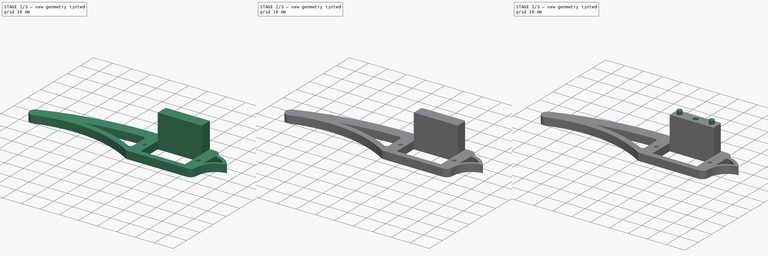
[diagram: build sequence overview — one tinted view per stage of 3, left to right]
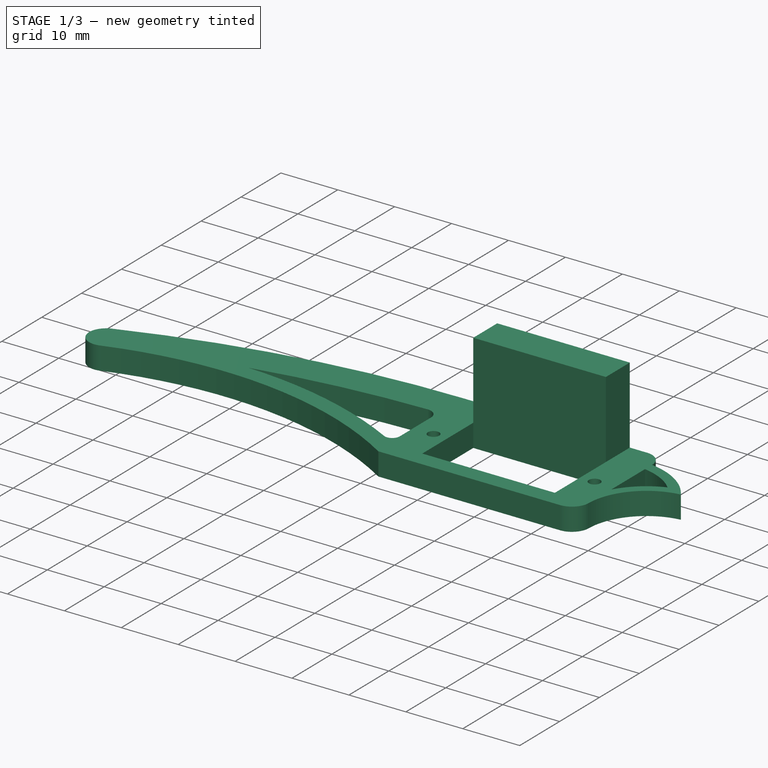
[diagram: stage 1 of 3 — iso view after this stage's code; geometry added in this stage tinted green]
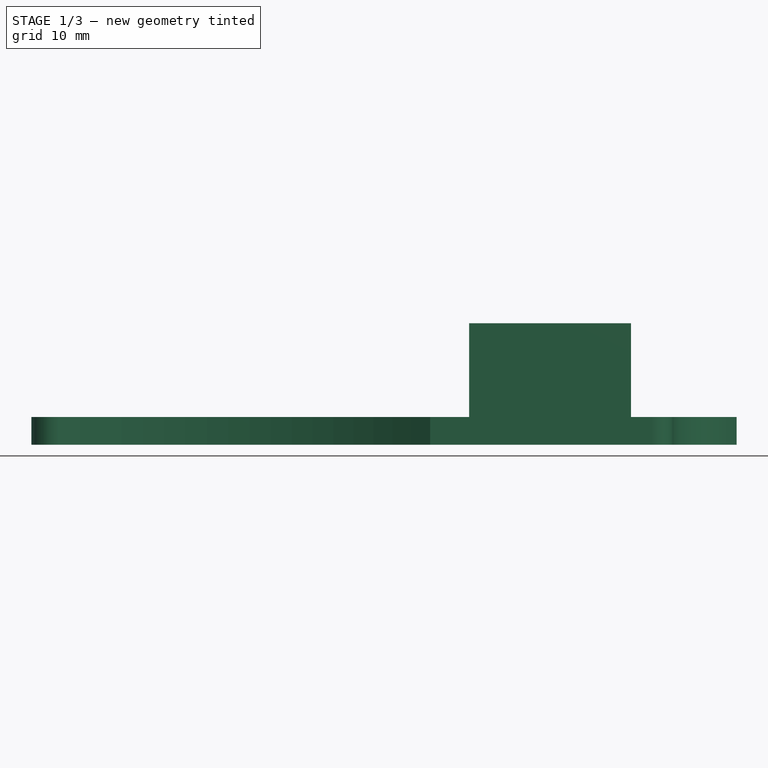
[diagram: stage 1 of 3 — front view after this stage's code; geometry added in this stage tinted green]
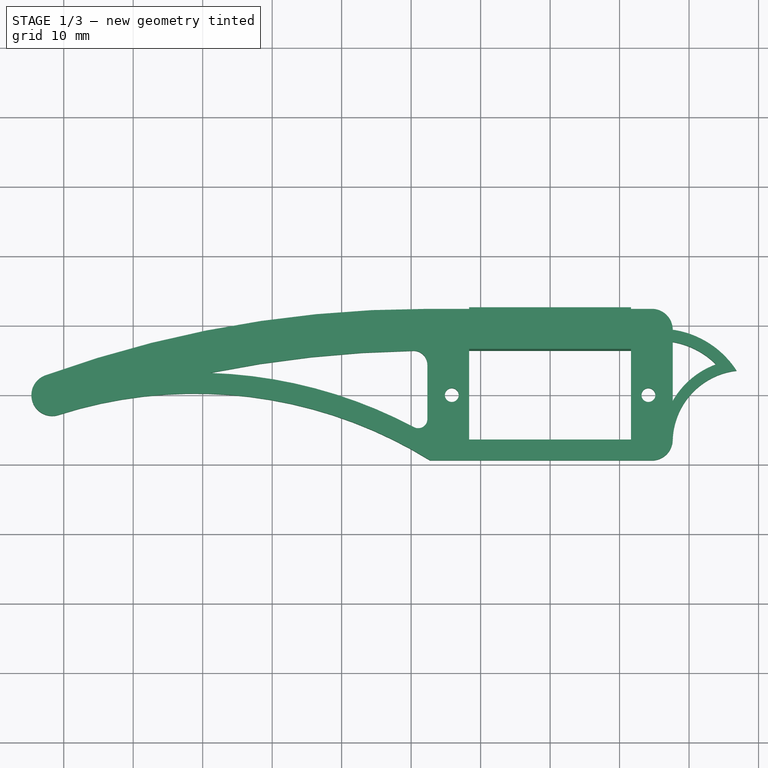
[diagram: stage 1 of 3 — top view after this stage's code; geometry added in this stage tinted green]
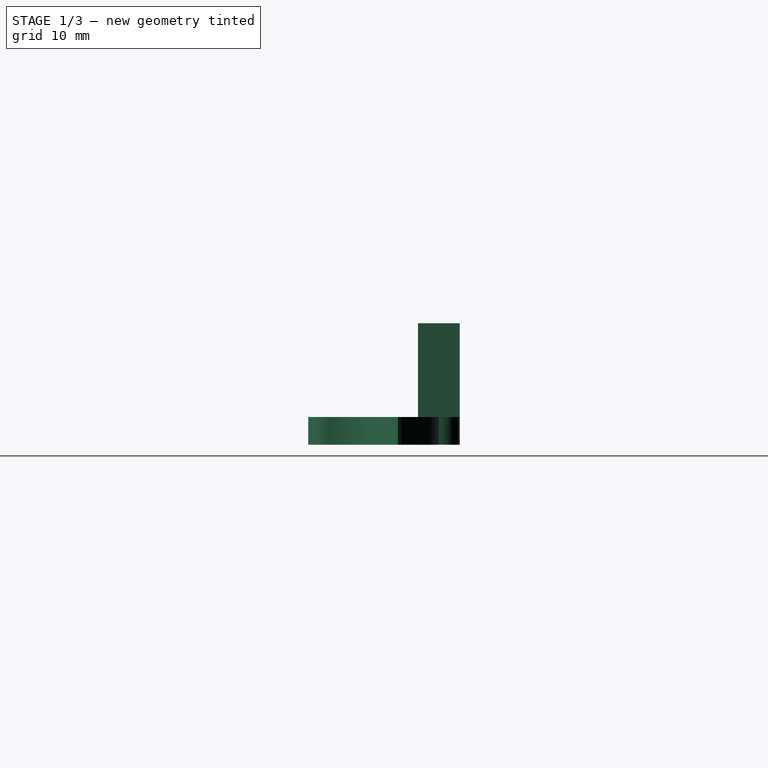
[diagram: stage 1 of 3 — right view after this stage's code; geometry added in this stage tinted green]
FCSTD DOCUMENT  (FreeCAD 0.21R33771 (Git))
Label: крак-десен
License: All rights reserved
LicenseURL: https://en.wikipedia.org/wiki/All_rights_reserved
objects: Sketcher::SketchObject×4, PartDesign::Pad×3, PartDesign::Fillet×2, PartDesign::Pocket×1, PartDesign::Body×1
note: 17 computed .brp shape members not serialized (recipe doc carries the construction recipe); baked Part::Feature solids carry a one-line shape summary decoded from their .brp

FEATURE [Sketcher::SketchObject] Sketch
  FullyConstrained = true
  MapMode = 5
  Support = -> [XY_Plane]
  sketch-geometry (26):
    g0: LineSegment StartX=-11.65 StartY=-6.4 StartZ=0 EndX=-11.65 EndY=6.4 EndZ=0
    g1: LineSegment StartX=-11.65 StartY=6.4 StartZ=0 EndX=11.65 EndY=6.4 EndZ=0
    g2: LineSegment StartX=11.65 StartY=6.4 StartZ=0 EndX=11.65 EndY=-6.4 EndZ=0
    g3: LineSegment StartX=11.65 StartY=-6.4 StartZ=0 EndX=-11.65 EndY=-6.4 EndZ=0
    g4: GeomPoint X=0 Y=0 Z=0
    g5: LineSegment StartX=-17.65 StartY=12.4 StartZ=0 EndX=14.65 EndY=12.4 EndZ=0
    g6: LineSegment StartX=17.65 StartY=7.63618 StartZ=0 EndX=17.65 EndY=-0.84 EndZ=0
    g7: LineSegment StartX=14.65 StartY=-9.4 StartZ=0 EndX=-17.27 EndY=-9.4 EndZ=0
    g8: LineSegment StartX=-17.6662 StartY=-3.46627 StartZ=0 EndX=-17.6662 EndY=4.38856 EndZ=0
    g9: ArcOfCircle CenterX=-71.65 CenterY=0 CenterZ=0 NormalX=0 NormalY=0 NormalZ=1 AngleXU=0 Radius=3 StartAngle=1.91771 EndAngle=5.06056
    g10: ArcOfCircle CenterX=14.65 CenterY=9.4 CenterZ=0 NormalX=0 NormalY=0 NormalZ=1 AngleXU=0 Radius=3 StartAngle=6.28319 EndAngle=7.85398
    g11: GeomPoint X=17.65 Y=12.4 Z=0
    g12: ArcOfCircle CenterX=14.65 CenterY=-6.4 CenterZ=0 NormalX=0 NormalY=0 NormalZ=1 AngleXU=0 Radius=3 StartAngle=4.71239 EndAngle=6.28319
    g13: GeomPoint X=17.65 Y=-9.4 Z=0
    g14: ArcOfCircle CenterX=-18.0008 CenterY=-148.391 CenterZ=0 NormalX=0 NormalY=0 NormalZ=1 AngleXU=0 Radius=160.792 StartAngle=1.56861 EndAngle=1.91771
    g15: ArcOfCircle CenterX=-16.955 CenterY=-154.388 CenterZ=0 NormalX=0 NormalY=0 NormalZ=1 AngleXU=0 Radius=160.79 StartAngle=1.58781 EndAngle=1.77131
    g16: ArcOfCircle CenterX=-51.0881 CenterY=-64.0061 CenterZ=0 NormalX=0 NormalY=0 NormalZ=1 AngleXU=0 Radius=64.23 StartAngle=1.0163 EndAngle=1.87989
    g17: ArcOfCircle CenterX=-51.0881 CenterY=-64.0061 CenterZ=0 NormalX=0 NormalY=0 NormalZ=1 AngleXU=0 Radius=67.2192 StartAngle=1.08311 EndAngle=1.53943
    g18: Circle CenterX=-14.15 CenterY=0 CenterZ=0 NormalX=0 NormalY=0 NormalZ=1 AngleXU=0 Radius=1
    g19: Circle CenterX=14.15 CenterY=0 CenterZ=0 NormalX=0 NormalY=0 NormalZ=1 AngleXU=0 Radius=1
    g20: ArcOfCircle CenterX=-19.6562 CenterY=4.38856 CenterZ=0 NormalX=0 NormalY=0 NormalZ=1 AngleXU=0 Radius=1.99 StartAngle=2e-16 EndAngle=1.58781
    g21: ArcOfCircle CenterX=-18.9762 CenterY=-3.46627 CenterZ=0 NormalX=0 NormalY=0 NormalZ=1 AngleXU=0 Radius=1.31 StartAngle=4.2247 EndAngle=6.28319
    g22: ArcOfCircle CenterX=27.9979 CenterY=-6.77676 CenterZ=0 NormalX=0 NormalY=0 NormalZ=1 AngleXU=0 Radius=11.93 StartAngle=1.92322 EndAngle=2.62072
    g23: ArcOfCircle CenterX=15.7697 CenterY=-3.64824 CenterZ=0 NormalX=0 NormalY=0 NormalZ=1 AngleXU=0 Radius=11.44 StartAngle=0.782798 EndAngle=1.40568
    g24: ArcOfCircle CenterX=15.7697 CenterY=-3.64824 CenterZ=0 NormalX=0 NormalY=0 NormalZ=1 AngleXU=0 Radius=13.183 StartAngle=0.573993 EndAngle=1.42768
    g25: ArcOfCircle CenterX=28.0029 CenterY=-6.78453 CenterZ=0 NormalX=0 NormalY=0 NormalZ=1 AngleXU=0 Radius=10.36 StartAngle=1.68328 EndAngle=3.10447
  constraints (77):
    c: Coincident(g0,g1)
    c: Coincident(g1,g2)
    c: Coincident(g2,g3)
    c: Coincident(g3,g0)
    c: Horizontal(g1)
    c: Horizontal(g3)
    c: Vertical(g0)
    c: Vertical(g2)
    c: Symmetric(g1,g0,g4)
    c: Coincident(g4,g-1)
    c: DistanceX(g0,g1) = 23.3  'ЛЕГЛО МОТОР ДЪЛЖИНА'
    c: DistanceY(g2,g1) = 12.8  'ЛЕГЛО МОТОР ШИРИНА'
    c: Horizontal(g5)
    c: Horizontal(g7)
    c: Vertical(g6)
    c: Vertical(g8)
    c: DistanceX(g1,g11) = 6
    c: DistanceY(g1,g11) = 6
    c: DistanceX(g5,g0) = 6
    c: DistanceY(g13,g2) = 3
    c: PointOnObject(g9,g-1)
    c: Radius(g9) = 3
    c: DistanceX(g9,g0) = 60
    c: PointOnObject(g11,g5)
    c: PointOnObject(g11,g6)
    c: Tangent(g5,g10) = 1.5708
    c: PointOnObject(g13,g6)
    c: PointOnObject(g13,g7)
    c: Tangent(g7,g12) = 1.5708
    c: Radius(g10) = 3
    c: Radius(g12) = 3
    c: Coincident(g14,g5)
    c: DistanceX(g14,g0) = 61.02
    c: Radius(g15) = 160.79
    c: Coincident(g16,g7)
    c: Radius(g16) = 64.23
    c: Coincident(g17,g16)
    c: Tangent(g9,g14) = -1.5708
    c: Coincident(g15,g17)
    c: DistanceY(g9,g-1) = 2.82
    c: DistanceY(g-1,g15) = 3.18
    c: PointOnObject(g18,g-1)
    c: Radius(g18) = 1
    c: DistanceX(g18,g0) = 2.5
    c: PointOnObject(g19,g-1)
    c: Radius(g19) = 1
    c: DistanceX(g1,g19) = 2.5
    c: Tangent(g15,g20) = -1.5708
    c: Tangent(g8,g20) = -1.5708
    c: Tangent(g8,g21) = -1.5708
    c: Tangent(g17,g21) = 1.5708
    c: Radius(g20) = 1.99
    c: Radius(g21) = 1.31
    c: DistanceX(g15,g0) = 8.04
    c: DistanceX(g17,g0) = 7.94
    c: DistanceX(g1,g24) = 15.19
    c: DistanceY(g24,g1) = 2.89
    c: Radius(g23) = 11.44
    c: Radius(g22) = 11.93
    c: Coincident(g23,g22)
    c: Coincident(g6,g22)
    c: Coincident(g6,g23)
    c: DistanceX(g1,g22) = 12.23
    c: DistanceY(g22,g1) = 1.98
    c: DistanceY(g12,g-1) = 6.4
    c: DistanceX(g-1,g7) = 14.65
    c: DistanceX(g-1,g10) = 17.65
    c: DistanceX(g-1,g5) = 14.65
    c: Coincident(g24,g23)
    c: Coincident(g24,g10)
    c: Coincident(g9,g16)
    c: DistanceX(g15,g0) = 37.33
    c: DistanceX(g7,g-1) = 17.27
    c: Coincident(g25,g12)
    c: Coincident(g25,g24)
    c: Radius(g25) = 10.36
    c: DistanceY(g6,g1) = 7.24
FEATURE [PartDesign::Pad] Pad
  Direction = (0,0,1)
  Length = 4
  Length2 = 10
  Profile = -> Sketch
  ReferenceAxis = -> Sketch [N_Axis]
  Type = 0
FEATURE [Sketcher::SketchObject] Sketch001
  FullyConstrained = true
  MapMode = 5
  Placement = pos=(0,0,4) rot=(0,0,1;0rad)
  Support = -> [Pad]
  sketch-geometry (4):
    g0: LineSegment StartX=11.65 StartY=6.4 StartZ=0 EndX=-11.65 EndY=6.4 EndZ=0
    g1: LineSegment StartX=-11.65 StartY=6.4 StartZ=0 EndX=-11.65 EndY=12.4 EndZ=0
    g2: LineSegment StartX=-11.65 StartY=12.4 StartZ=0 EndX=11.65 EndY=12.4 EndZ=0
    g3: LineSegment StartX=11.65 StartY=12.4 StartZ=0 EndX=11.65 EndY=6.4 EndZ=0
  constraints (12):
    c: Coincident(g0,g1)
    c: Coincident(g1,g2)
    c: Coincident(g2,g3)
    c: Coincident(g3,g0)
    c: Horizontal(g0)
    c: Horizontal(g2)
    c: Vertical(g1)
    c: Vertical(g3)
    c: DistanceY(g-1,g0) = 6.4
    c: DistanceY(g0,g2) = 6
    c: DistanceX(g-1,g0) = 11.65
    c: DistanceX(g1,g2) = 23.3
FEATURE [PartDesign::Pad] Pad001
  BaseFeature = -> Pad
  Direction = (0,0,1)
  Length = 13.5
  Length2 = 10
  Profile = -> Sketch001
  ReferenceAxis = -> Sketch001 [N_Axis]
  Type = 0
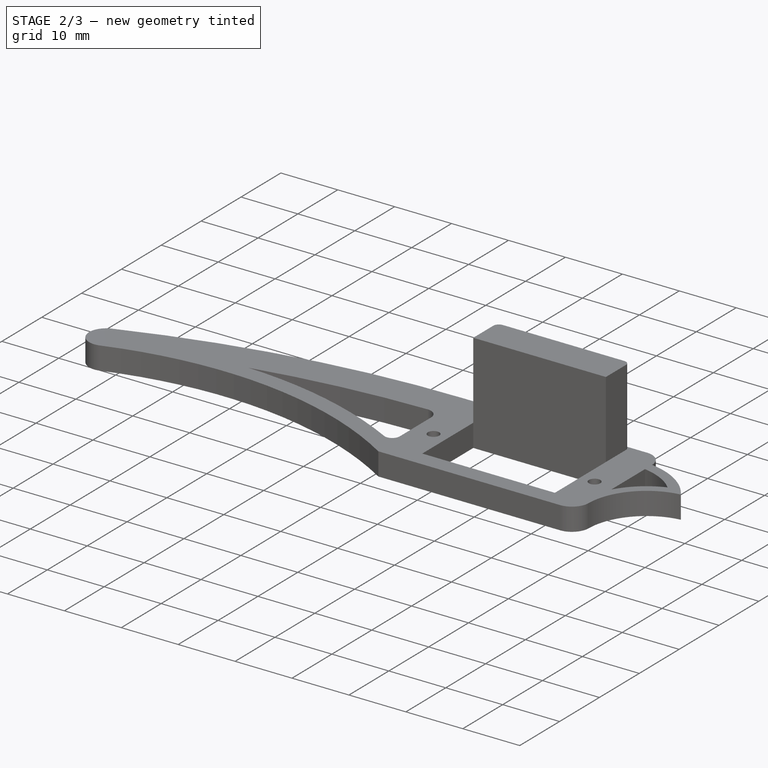
[diagram: stage 2 of 3 — iso view after this stage's code; geometry added in this stage tinted green]
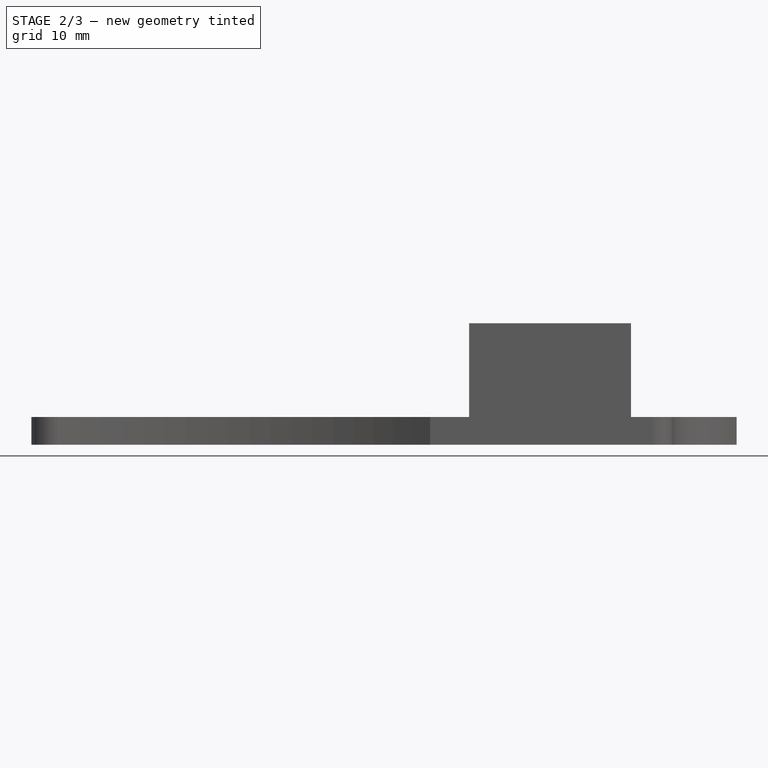
[diagram: stage 2 of 3 — front view after this stage's code; geometry added in this stage tinted green]
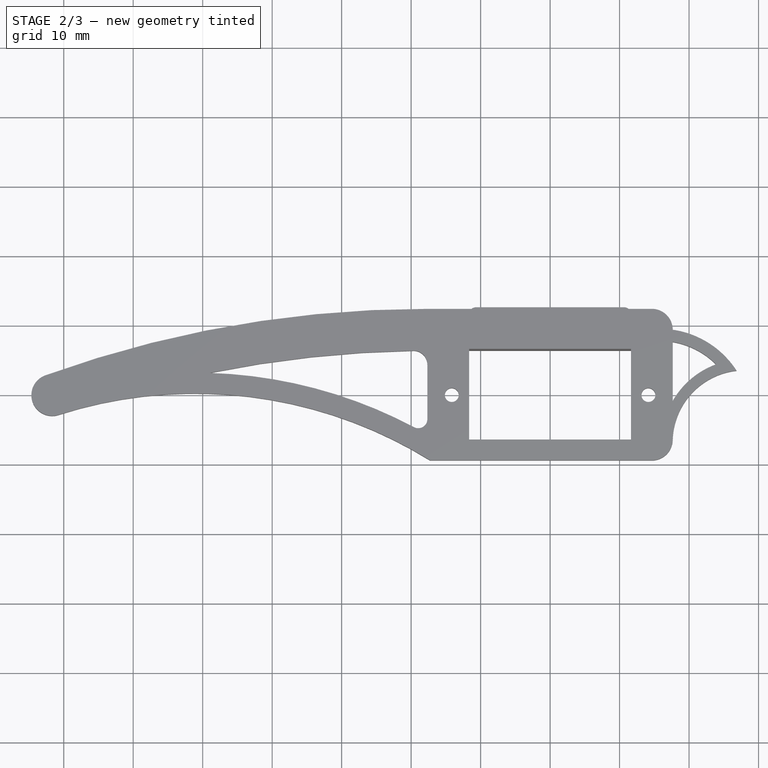
[diagram: stage 2 of 3 — top view after this stage's code; geometry added in this stage tinted green]
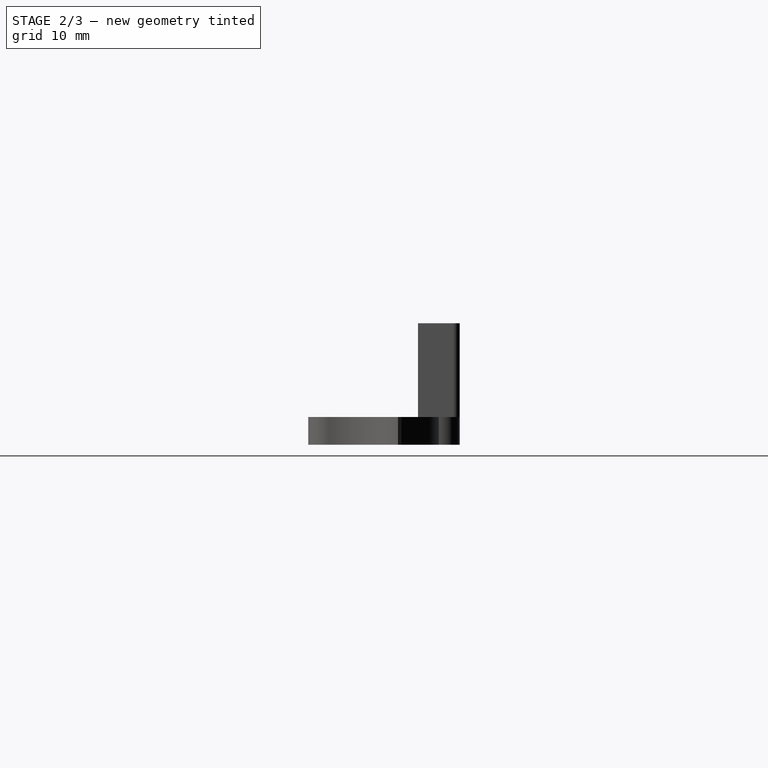
[diagram: stage 2 of 3 — right view after this stage's code; geometry added in this stage tinted green]
FEATURE [PartDesign::Fillet] Fillet
  Base = -> Pad001 [Edge55]
  BaseFeature = -> Pad001
  Radius = 1
  SupportTransform = false
  UseAllEdges = false
FEATURE [PartDesign::Fillet] Fillet001
  Base = -> Fillet [Edge37]
  BaseFeature = -> Fillet
  Radius = 1
  SupportTransform = false
  UseAllEdges = false
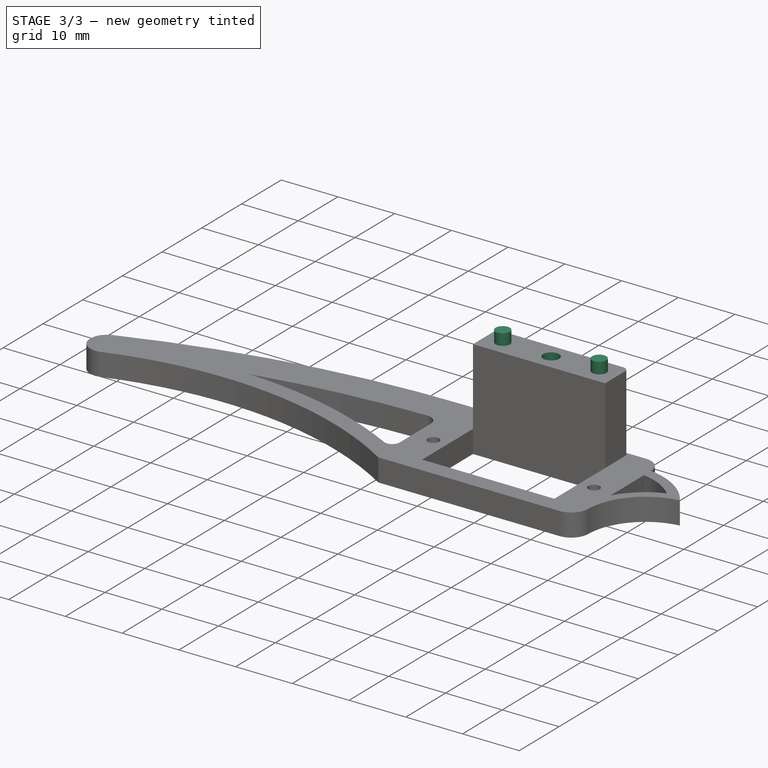
[diagram: stage 3 of 3 — iso view after this stage's code; geometry added in this stage tinted green]
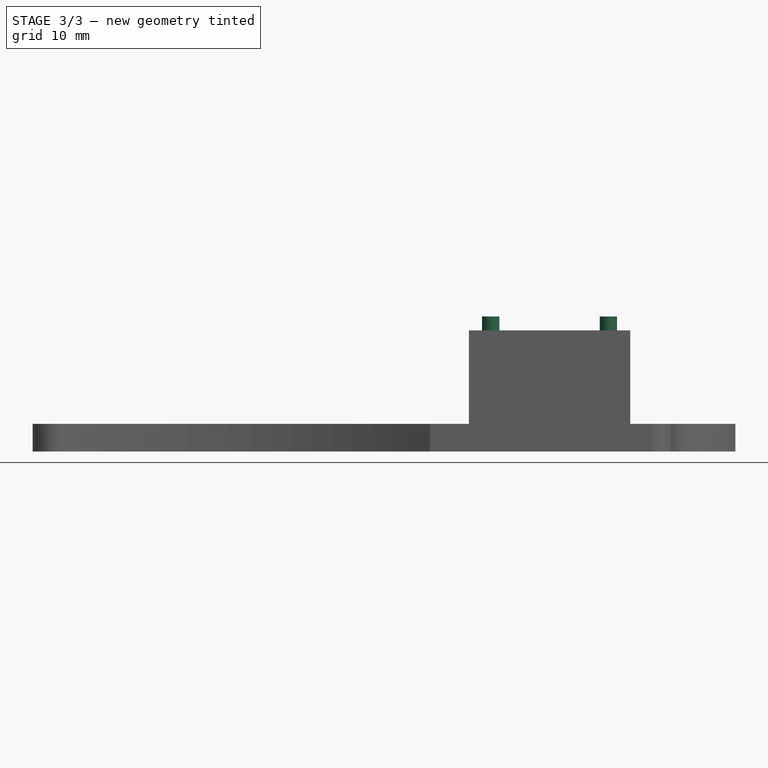
[diagram: stage 3 of 3 — front view after this stage's code; geometry added in this stage tinted green]
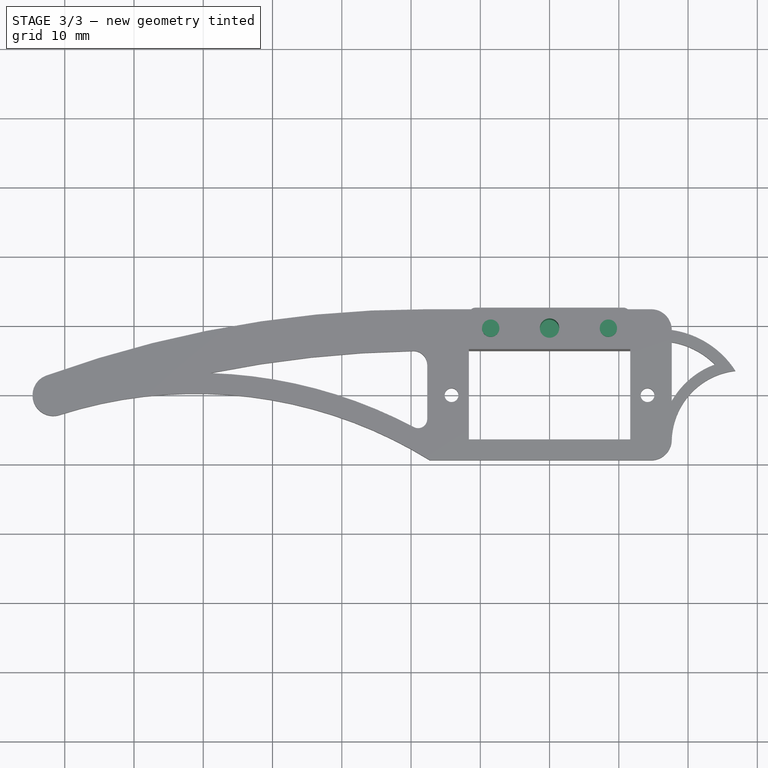
[diagram: stage 3 of 3 — top view after this stage's code; geometry added in this stage tinted green]
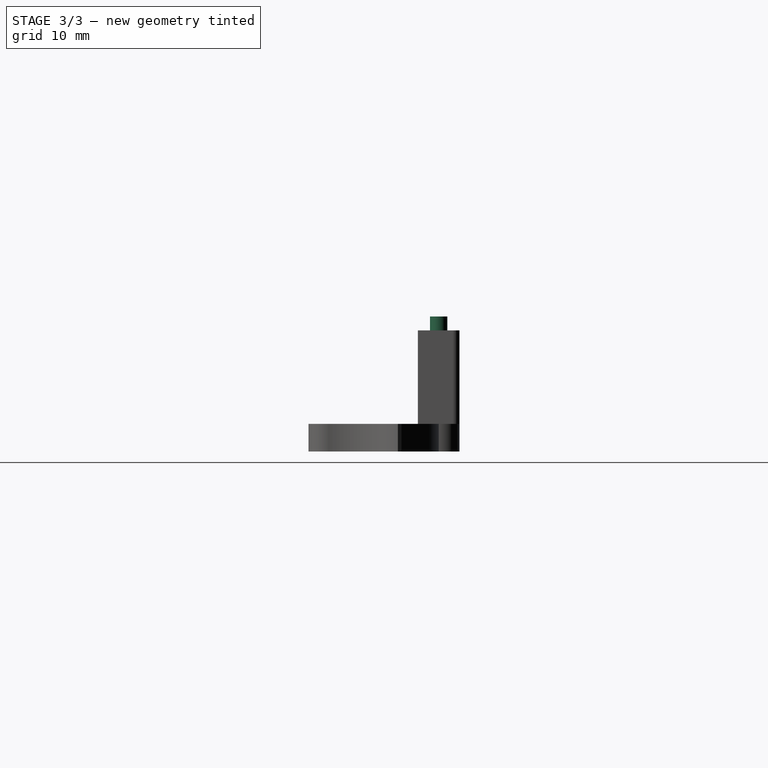
[diagram: stage 3 of 3 — right view after this stage's code; geometry added in this stage tinted green]
FEATURE [Sketcher::SketchObject] Sketch002
  FullyConstrained = true
  MapMode = 5
  Placement = pos=(0,0,17.5) rot=(0,0,1;0rad)
  Support = -> [Fillet001]
  sketch-geometry (2):
    g0: Circle CenterX=8.5 CenterY=9.4 CenterZ=0 NormalX=0 NormalY=0 NormalZ=1 AngleXU=0 Radius=1.25
    g1: Circle CenterX=-8.5 CenterY=9.4 CenterZ=0 NormalX=0 NormalY=0 NormalZ=1 AngleXU=0 Radius=1.25
  constraints (5):
    c: Symmetric(g1,g0,g-2)
    c: DistanceY(g-1,g1) = 9.4
    c: Radius(g1) = 1.25
    c: Radius(g0) = 1.25
    c: DistanceX(g1,g-1) = 8.5
FEATURE [PartDesign::Pad] Pad002
  BaseFeature = -> Fillet001
  Direction = (0,0,1)
  Length = 2
  Length2 = 10
  Profile = -> Sketch002
  ReferenceAxis = -> Sketch002 [N_Axis]
  Type = 0
FEATURE [Sketcher::SketchObject] Sketch003
  FullyConstrained = true
  MapMode = 5
  Placement = pos=(0,0,17.5) rot=(0,0,1;0rad)
  Support = -> [Pad002]
  sketch-geometry (1):
    g0: Circle CenterX=0 CenterY=9.44 CenterZ=0 NormalX=0 NormalY=0 NormalZ=1 AngleXU=0 Radius=1.4
  constraints (3):
    c: PointOnObject(g0,g-2)
    c: Radius(g0) = 1.4
    c: DistanceY(g-1,g0) = 9.44
FEATURE [PartDesign::Pocket] Pocket
  BaseFeature = -> Pad002
  Direction = (0,0,-1)
  Length = 11
  Length2 = 5
  Profile = -> Sketch003
  ReferenceAxis = -> Sketch003 [N_Axis]
  Type = 0
FEATURE [PartDesign::Body] Body
  Group = -> [Sketch,Pad,Sketch001,Pad001,Fillet,Fillet001,Sketch002,Pad002,Sketch003,Pocket]
  Origin = -> Origin
  Tip = -> Pocket
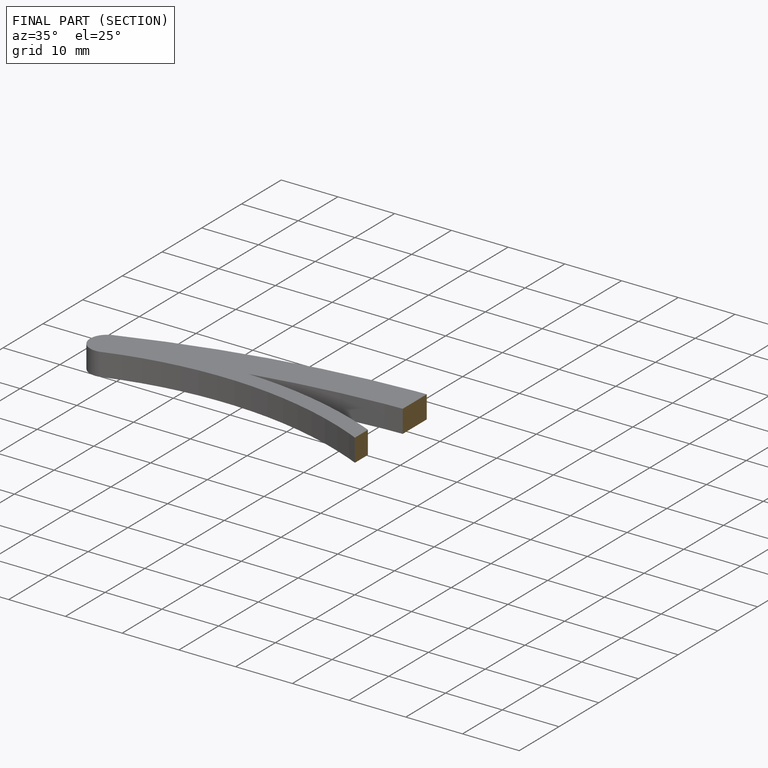
[diagram: finished part — half-section view (interior)]
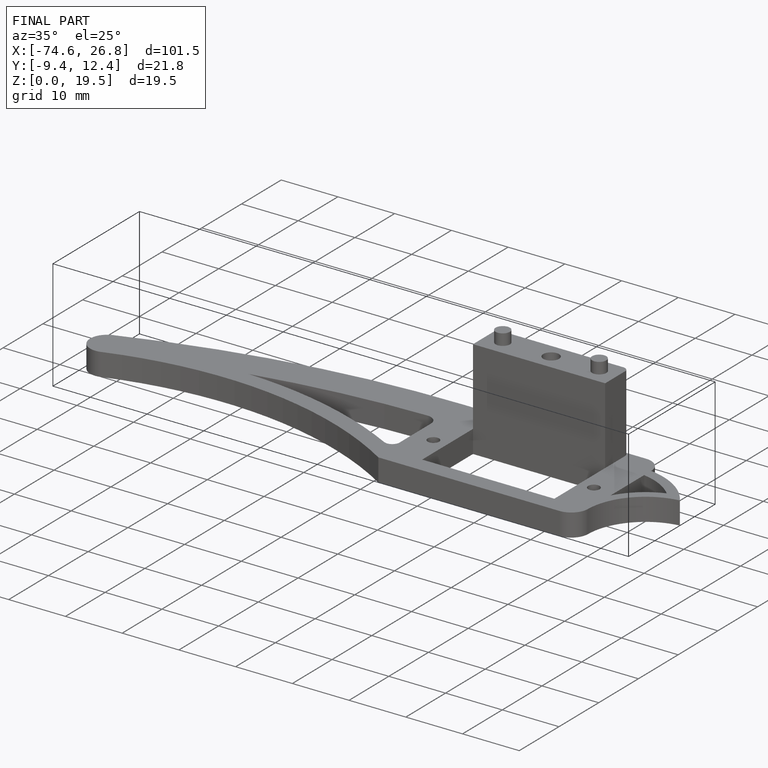
[diagram: finished part — iso view with bounding-box wireframe]
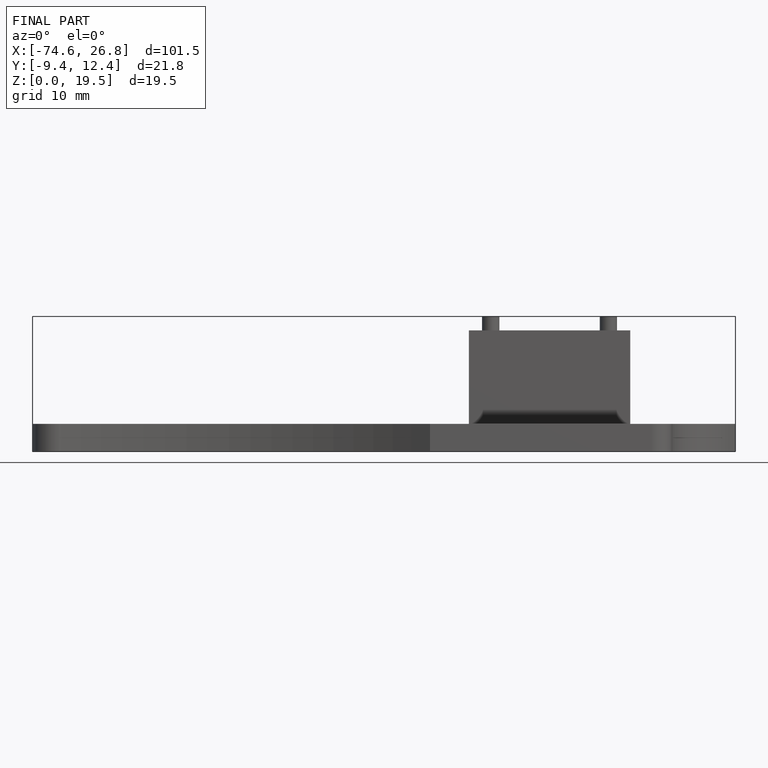
[diagram: finished part — front view with bounding-box wireframe]
